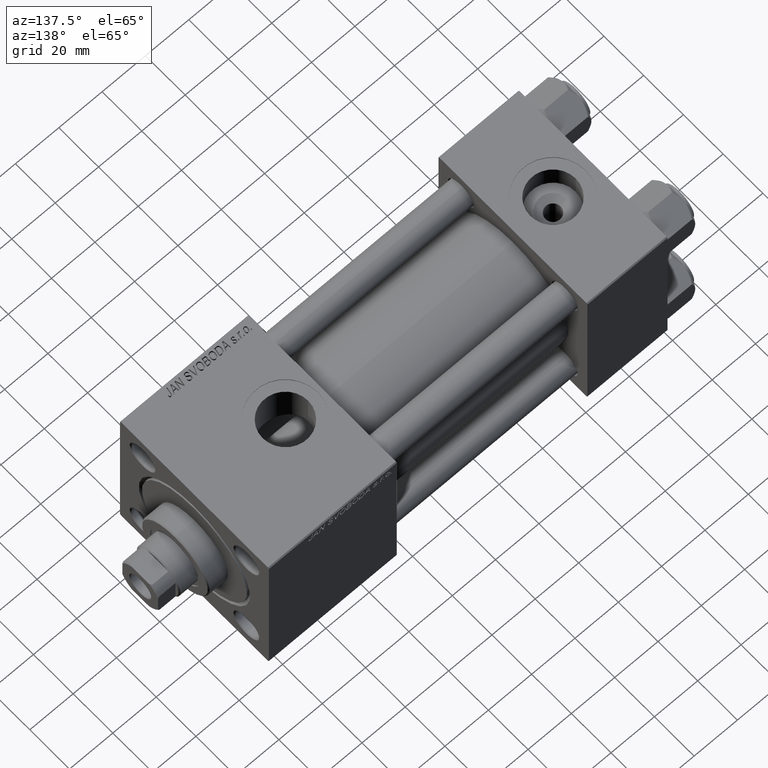
[diagram: clean part render]
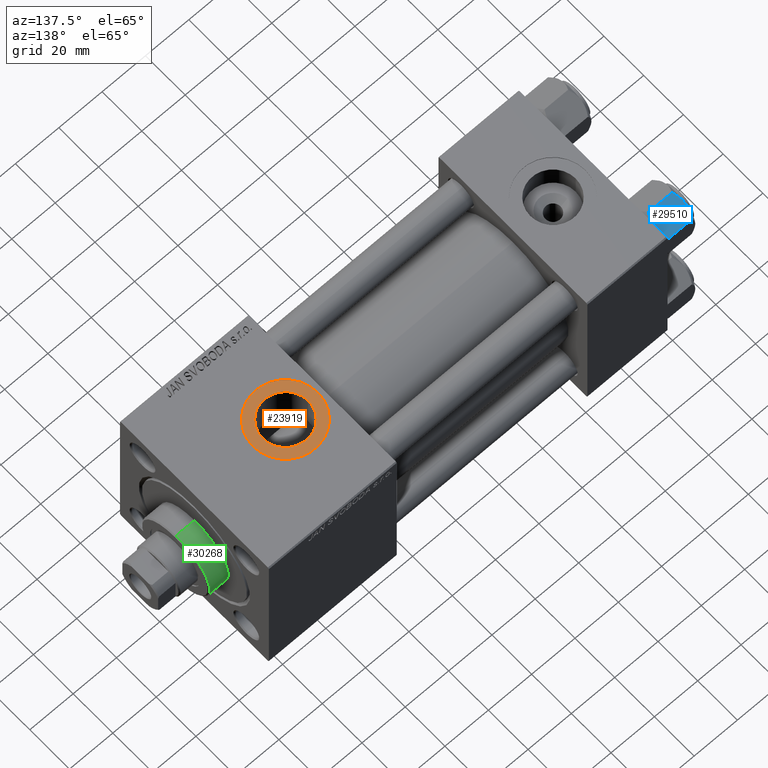
[diagram: same view with three faces highlighted in distinct colors, each labeled with its STEP entity id]
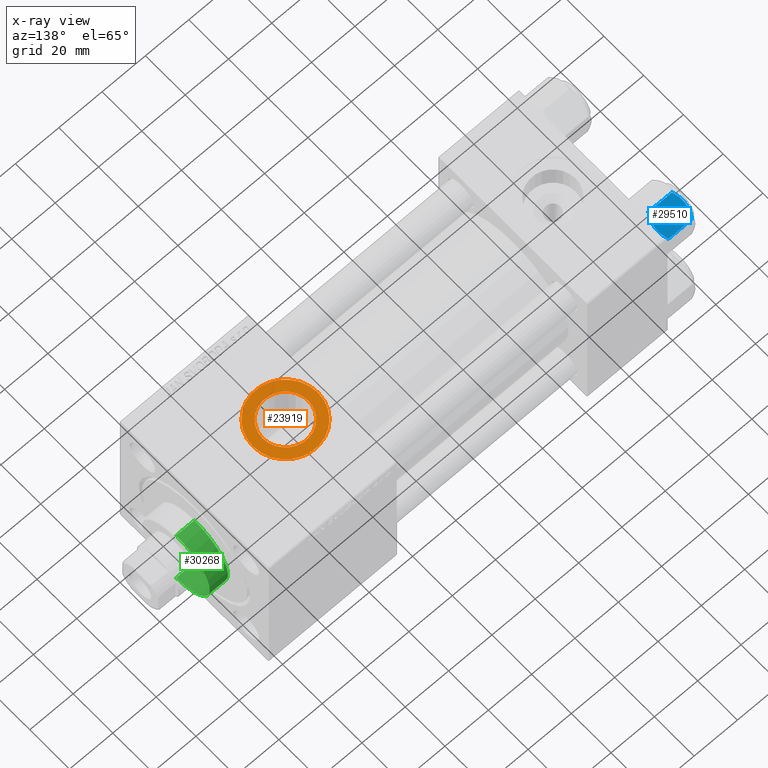
[diagram: x-ray of the same camera — body ghosted, the three highlighted faces saturated]
A machine part, auxiliary view with three faces highlighted in distinct colors.
The next image is the same camera in x-ray (body ghosted, the three faces saturated) — at least one of them is partly hidden behind the body in this view.
Their STEP definitions:

[orange] entity #23919 — the highlighted planar face has unit normal (0, 0, 1).
#1430 = CARTESIAN_POINT ( 'NONE',  ( 152.4800000000000182, -5.655464058400802100E-15, 37.29999999999998295 ) ) ;
#3270 = VERTEX_POINT ( 'NONE', #45122 ) ;
#5999 = CARTESIAN_POINT ( 'NONE',  ( 142.0000000000000284, -6.938893903907226011E-15, 37.29999999999998295 ) ) ;
#6926 = CARTESIAN_POINT ( 'NONE',  ( 142.0000000000000284, -6.938893903907226011E-15, 37.29999999999998295 ) ) ;
#7185 = DIRECTION ( 'NONE',  ( 0.000000000000000000, 0.000000000000000000, 1.000000000000000000 ) ) ;
#7533 = DIRECTION ( 'NONE',  ( -0.000000000000000000, -0.000000000000000000, -1.000000000000000000 ) ) ;
#8859 = EDGE_CURVE ( 'NONE', #26062, #43511, #43702, .T. ) ;
#9666 = AXIS2_PLACEMENT_3D ( 'NONE', #25043, #13604, #17517 ) ;
#11087 = CARTESIAN_POINT ( 'NONE',  ( 142.0000000000000284, -6.938893903907226011E-15, 37.29999999999998295 ) ) ;
#11682 = CARTESIAN_POINT ( 'NONE',  ( 142.0000000000000284, -6.938893903907226011E-15, 37.29999999999998295 ) ) ;
#12077 = EDGE_LOOP ( 'NONE', ( #21421, #30711 ) ) ;
#12200 = DIRECTION ( 'NONE',  ( 1.000000000000000000, 0.000000000000000000, 0.000000000000000000 ) ) ;
#13102 = VERTEX_POINT ( 'NONE', #1430 ) ;
#13604 = DIRECTION ( 'NONE',  ( 0.000000000000000000, 0.000000000000000000, 1.000000000000000000 ) ) ;
#15765 = ORIENTED_EDGE ( 'NONE', *, *, #48120, .T. ) ;
#16341 = CARTESIAN_POINT ( 'NONE',  ( 157.0000000000000284, -6.938893903907226011E-15, 37.29999999999998295 ) ) ;
#17517 = DIRECTION ( 'NONE',  ( 1.000000000000000000, 0.000000000000000000, 0.000000000000000000 ) ) ;
#18379 = DIRECTION ( 'NONE',  ( 1.000000000000000000, 0.000000000000000000, -0.000000000000000000 ) ) ;
#21257 = CIRCLE ( 'NONE', #50256, 10.47999999999998977 ) ;
#21421 = ORIENTED_EDGE ( 'NONE', *, *, #8859, .T. ) ;
#22280 = FACE_OUTER_BOUND ( 'NONE', #12077, .T. ) ;
#22793 = DIRECTION ( 'NONE',  ( 1.000000000000000000, 0.000000000000000000, 0.000000000000000000 ) ) ;
#23919 = ADVANCED_FACE ( 'NONE', ( #42521, #22280 ), #50043, .T. ) ;
#25043 = CARTESIAN_POINT ( 'NONE',  ( 142.0000000000000284, -6.938893903907226011E-15, 37.29999999999998295 ) ) ;
#25630 = CIRCLE ( 'NONE', #43880, 10.47999999999998977 ) ;
#26062 = VERTEX_POINT ( 'NONE', #16341 ) ;
#26744 = DIRECTION ( 'NONE',  ( 1.000000000000000000, 0.000000000000000000, 0.000000000000000000 ) ) ;
#30711 = ORIENTED_EDGE ( 'NONE', *, *, #32749, .T. ) ;
#32749 = EDGE_CURVE ( 'NONE', #43511, #26062, #50156, .T. ) ;
#35967 = EDGE_CURVE ( 'NONE', #13102, #3270, #21257, .T. ) ;
#37007 = ORIENTED_EDGE ( 'NONE', *, *, #35967, .T. ) ;
#37571 = AXIS2_PLACEMENT_3D ( 'NONE', #6926, #7185, #18379 ) ;
#37686 = DIRECTION ( 'NONE',  ( -0.000000000000000000, -0.000000000000000000, -1.000000000000000000 ) ) ;
#40299 = EDGE_LOOP ( 'NONE', ( #15765, #37007 ) ) ;
#42521 = FACE_BOUND ( 'NONE', #40299, .T. ) ;
#43511 = VERTEX_POINT ( 'NONE', #50859 ) ;
#43702 = CIRCLE ( 'NONE', #9666, 15.00000000000001421 ) ;
#43880 = AXIS2_PLACEMENT_3D ( 'NONE', #11682, #7533, #12200 ) ;
#45122 = CARTESIAN_POINT ( 'NONE',  ( 131.5200000000000387, -6.938893903907226011E-15, 37.29999999999998295 ) ) ;
#46854 = AXIS2_PLACEMENT_3D ( 'NONE', #11087, #47192, #22793 ) ;
#47192 = DIRECTION ( 'NONE',  ( 0.000000000000000000, 0.000000000000000000, 1.000000000000000000 ) ) ;
#48120 = EDGE_CURVE ( 'NONE', #3270, #13102, #25630, .T. ) ;
#50043 = PLANE ( 'NONE',  #37571 ) ;
#50156 = CIRCLE ( 'NONE', #46854, 15.00000000000001421 ) ;
#50256 = AXIS2_PLACEMENT_3D ( 'NONE', #5999, #37686, #26744 ) ;
#50859 = CARTESIAN_POINT ( 'NONE',  ( 127.0000000000000000, -5.101923705186191689E-15, 37.29999999999998295 ) ) ;

[blue] entity #29510 — the highlighted planar face has unit normal (0, -0.5, -0.866).
#1843 = CARTESIAN_POINT ( 'NONE',  ( 11.62000000000000099, -1.924525737834042474E-15, -1.556784808024813893 ) ) ;
#2121 = CARTESIAN_POINT ( 'NONE',  ( 8.460569896449619876, 5.472293462311864864, -14.00000000000000355 ) ) ;
#3059 = EDGE_CURVE ( 'NONE', #9451, #17231, #37602, .T. ) ;
#3958 = CARTESIAN_POINT ( 'NONE',  ( 11.62000000000000099, -1.795242522838921761E-15, -12.44321519197518455 ) ) ;
#4505 = CARTESIAN_POINT ( 'NONE',  ( 7.713000053756307928, 6.767122412062951398, -0.1545239700039825748 ) ) ;
#4762 = CARTESIAN_POINT ( 'NONE',  ( 8.209704053696576409, 5.906805847843727086, 3.430483436379916373E-15 ) ) ;
#4848 = CARTESIAN_POINT ( 'NONE',  ( 9.974696630283190757, 2.849749030213792000, -0.3002673809867367205 ) ) ;
#5386 = AXIS2_PLACEMENT_3D ( 'NONE', #34758, #15521, #47207 ) ;
#5764 = CARTESIAN_POINT ( 'NONE',  ( 8.202333004087902779, 5.919572880271052995, -13.96005881939309212 ) ) ;
#6843 = CARTESIAN_POINT ( 'NONE',  ( 11.62000000000000099, -1.813166800014576593E-15, -14.00000000000000000 ) ) ;
#8484 = CARTESIAN_POINT ( 'NONE',  ( 11.16445427487472131, 0.7890283410877956261, -1.101239082899531985 ) ) ;
#9070 = CARTESIAN_POINT ( 'NONE',  ( 5.810000000000000497, 10.06321519197518022, -14.00000000000000000 ) ) ;
#9336 = CARTESIAN_POINT ( 'NONE',  ( 5.810000000000000497, 10.06321519197518022, -12.44321519197518278 ) ) ;
#9451 = VERTEX_POINT ( 'NONE', #9336 ) ;
#10540 = CARTESIAN_POINT ( 'NONE',  ( 11.62000000000000099, -1.795242522838921761E-15, -12.44321519197518455 ) ) ;
#12219 = VECTOR ( 'NONE', #24918, 1000.000000000000000 ) ;
#12377 = CARTESIAN_POINT ( 'NONE',  ( 11.62000000000000099, -1.924525737834042474E-15, -1.556784808024813893 ) ) ;
#13816 = CARTESIAN_POINT ( 'NONE',  ( 6.731401448974989599, 8.467301068182914392, -13.28585617404753272 ) ) ;
#13821 = ORIENTED_EDGE ( 'NONE', *, *, #3059, .F. ) ;
#14434 = CARTESIAN_POINT ( 'NONE',  ( 11.16498164529022574, 0.7881149087337280257, -12.89823354668504862 ) ) ;
#15148 = CARTESIAN_POINT ( 'NONE',  ( 8.715000000000003411, 5.031607595987588333, -14.00000000000000000 ) ) ;
#15521 = DIRECTION ( 'NONE',  ( -0.8660254037844387076, -0.4999999999999998335, 0.000000000000000000 ) ) ;
#16453 = CARTESIAN_POINT ( 'NONE',  ( 5.810000000000000497, 10.06321519197518022, -1.556784808024815892 ) ) ;
#17231 = VERTEX_POINT ( 'NONE', #15148 ) ;
#18345 = CARTESIAN_POINT ( 'NONE',  ( 9.220295946303432189, 4.156409344131451356, -14.00000000000000178 ) ) ;
#18797 = DIRECTION ( 'NONE',  ( -0.000000000000000000, -0.000000000000000000, 1.000000000000000000 ) ) ;
#19497 = VERTEX_POINT ( 'NONE', #30197 ) ;
#20440 = CARTESIAN_POINT ( 'NONE',  ( 8.969430103550381617, 4.590921729663312689, 3.523657060577888622E-15 ) ) ;
#21123 = CARTESIAN_POINT ( 'NONE',  ( 8.715000000000005187, 5.031607595987590109, 0.000000000000000000 ) ) ;
#21367 = CARTESIAN_POINT ( 'NONE',  ( 7.700834831386346835, 6.788193195293095172, -13.80960203119265728 ) ) ;
#23823 = CARTESIAN_POINT ( 'NONE',  ( 9.227666995912102266, 4.143642311704121894, -0.03994118060690670519 ) ) ;
#24512 = CARTESIAN_POINT ( 'NONE',  ( 6.265018354709773973, 9.275100283241448196, -1.101766453314953154 ) ) ;
#24848 = CARTESIAN_POINT ( 'NONE',  ( 9.729165168613654657, 3.275021996682081493, -0.1903979688073405840 ) ) ;
#24918 = DIRECTION ( 'NONE',  ( -0.000000000000000000, -0.000000000000000000, 1.000000000000000000 ) ) ;
#27243 = B_SPLINE_CURVE_WITH_KNOTS ( 'NONE', 3,
 ( #21123, #4762, #4505, #44245, #24512, #16453 ),
 .UNSPECIFIED., .F., .F.,
 ( 4, 2, 4 ),
 ( 0.006022845781655588107, 0.009013049135303636758, 0.01200325248895168367 ),
 .UNSPECIFIED. ) ;
#27711 = CARTESIAN_POINT ( 'NONE',  ( 10.69859855102501278, 1.595914123792262718, -0.7141438259524649501 ) ) ;
#28044 = LINE ( 'NONE', #9070, #12219 ) ;
#29510 = ADVANCED_FACE ( 'NONE', ( #51088 ), #47472, .F. ) ;
#29780 = CARTESIAN_POINT ( 'NONE',  ( 8.715000000000003411, 5.031607595987588333, -14.00000000000000000 ) ) ;
#30197 = CARTESIAN_POINT ( 'NONE',  ( 8.715000000000005187, 5.031607595987590109, 0.000000000000000000 ) ) ;
#31787 = EDGE_CURVE ( 'NONE', #48972, #19497, #34830, .T. ) ;
#32784 = ORIENTED_EDGE ( 'NONE', *, *, #31787, .F. ) ;
#32985 = ORIENTED_EDGE ( 'NONE', *, *, #41641, .F. ) ;
#33566 = CARTESIAN_POINT ( 'NONE',  ( 8.715000000000003411, 5.031607595987588333, -14.00000000000000000 ) ) ;
#34185 = CARTESIAN_POINT ( 'NONE',  ( 9.716999946243698005, 3.296092779912227044, -13.84547602999601779 ) ) ;
#34758 = CARTESIAN_POINT ( 'NONE',  ( 5.810000000000000497, 10.06321519197518022, -14.00000000000000000 ) ) ;
#34830 = B_SPLINE_CURVE_WITH_KNOTS ( 'NONE', 3,
 ( #12377, #8484, #27711, #4848, #24848, #23823, #20440, #36536 ),
 .UNSPECIFIED., .F., .F.,
 ( 4, 2, 2, 4 ),
 ( 2.544312114903581015E-07, 0.003011550106433540791, 0.004517197944044564449, 0.006022845781655588107 ),
 .UNSPECIFIED. ) ;
#36536 = CARTESIAN_POINT ( 'NONE',  ( 8.715000000000005187, 5.031607595987590109, 0.000000000000000000 ) ) ;
#37602 = B_SPLINE_CURVE_WITH_KNOTS ( 'NONE', 3,
 ( #37707, #45762, #13816, #50142, #21367, #5764, #2121, #33566 ),
 .UNSPECIFIED., .F., .F.,
 ( 4, 2, 2, 4 ),
 ( 2.544312114902182352E-07, 0.003011550106433540791, 0.004517197944044566184, 0.006022845781655591577 ),
 .UNSPECIFIED. ) ;
#37647 = ORIENTED_EDGE ( 'NONE', *, *, #45524, .T. ) ;
#37707 = CARTESIAN_POINT ( 'NONE',  ( 5.810000000000000497, 10.06321519197518022, -12.44321519197518278 ) ) ;
#38706 = EDGE_CURVE ( 'NONE', #50126, #48972, #42443, .T. ) ;
#41336 = VERTEX_POINT ( 'NONE', #45941 ) ;
#41641 = EDGE_CURVE ( 'NONE', #17231, #50126, #44046, .T. ) ;
#42443 = LINE ( 'NONE', #6843, #46240 ) ;
#42894 = EDGE_CURVE ( 'NONE', #19497, #41336, #27243, .T. ) ;
#44046 = B_SPLINE_CURVE_WITH_KNOTS ( 'NONE', 3,
 ( #29780, #18345, #34185, #50005, #14434, #10540 ),
 .UNSPECIFIED., .F., .F.,
 ( 4, 2, 4 ),
 ( 0.006022845781655591577, 0.009013049135303638493, 0.01200325248895168714 ),
 .UNSPECIFIED. ) ;
#44165 = EDGE_LOOP ( 'NONE', ( #13821, #37647, #46735, #32784, #49193, #32985 ) ) ;
#44245 = CARTESIAN_POINT ( 'NONE',  ( 6.733375043383499126, 8.463882702393844326, -0.7114554706434494946 ) ) ;
#45524 = EDGE_CURVE ( 'NONE', #9451, #41336, #28044, .T. ) ;
#45762 = CARTESIAN_POINT ( 'NONE',  ( 6.265545725125283738, 9.274186850887380373, -12.89876091710046602 ) ) ;
#45941 = CARTESIAN_POINT ( 'NONE',  ( 5.810000000000000497, 10.06321519197518022, -1.556784808024815892 ) ) ;
#46240 = VECTOR ( 'NONE', #18797, 1000.000000000000000 ) ;
#46735 = ORIENTED_EDGE ( 'NONE', *, *, #42894, .F. ) ;
#47207 = DIRECTION ( 'NONE',  ( 0.4999999999999998335, -0.8660254037844387076, 0.000000000000000000 ) ) ;
#47472 = PLANE ( 'NONE',  #5386 ) ;
#48972 = VERTEX_POINT ( 'NONE', #1843 ) ;
#49193 = ORIENTED_EDGE ( 'NONE', *, *, #38706, .F. ) ;
#50005 = CARTESIAN_POINT ( 'NONE',  ( 10.69662495661650503, 1.599332489581332339, -13.28854452935654962 ) ) ;
#50126 = VERTEX_POINT ( 'NONE', #3958 ) ;
#50142 = CARTESIAN_POINT ( 'NONE',  ( 7.455303369716809847, 7.213466161761385997, -13.69973261901326289 ) ) ;
#51088 = FACE_OUTER_BOUND ( 'NONE', #44165, .T. ) ;

[green] entity #30268 — the highlighted cylindrical surface (partial cylindrical patch) has radius 17 mm, axis along (-1, -0, -0).
#324 = LINE ( 'NONE', #35910, #3858 ) ;
#1936 = EDGE_CURVE ( 'NONE', #24775, #6202, #29808, .T. ) ;
#2008 = AXIS2_PLACEMENT_3D ( 'NONE', #9119, #4964, #32759 ) ;
#2383 = CIRCLE ( 'NONE', #37247, 17.00000000000000000 ) ;
#3858 = VECTOR ( 'NONE', #31231, 1000.000000000000000 ) ;
#4964 = DIRECTION ( 'NONE',  ( -0.000000000000000000, -0.000000000000000000, -1.000000000000000000 ) ) ;
#5252 = VECTOR ( 'NONE', #10811, 1000.000000000000000 ) ;
#6202 = VERTEX_POINT ( 'NONE', #31192 ) ;
#6253 = CARTESIAN_POINT ( 'NONE',  ( -17.00000000000000000, 0.000000000000000000, 28.69999999999999929 ) ) ;
#8856 = FACE_OUTER_BOUND ( 'NONE', #36830, .T. ) ;
#8983 = EDGE_CURVE ( 'NONE', #32515, #26933, #324, .T. ) ;
#9119 = CARTESIAN_POINT ( 'NONE',  ( 0.000000000000000000, 0.000000000000000000, 37.69999999999999574 ) ) ;
#10575 = CARTESIAN_POINT ( 'NONE',  ( 0.000000000000000000, 0.000000000000000000, 28.69999999999999929 ) ) ;
#10811 = DIRECTION ( 'NONE',  ( -0.000000000000000000, -0.000000000000000000, -1.000000000000000000 ) ) ;
#10826 = DIRECTION ( 'NONE',  ( 1.000000000000000000, 0.000000000000000000, 0.000000000000000000 ) ) ;
#15762 = ORIENTED_EDGE ( 'NONE', *, *, #48266, .T. ) ;
#15834 = CARTESIAN_POINT ( 'NONE',  ( -17.00000000000000000, 0.000000000000000000, 37.19999999999999574 ) ) ;
#16851 = CIRCLE ( 'NONE', #23479, 17.00000000000000000 ) ;
#23479 = AXIS2_PLACEMENT_3D ( 'NONE', #10575, #26167, #10826 ) ;
#23883 = EDGE_CURVE ( 'NONE', #6202, #26933, #16851, .T. ) ;
#24107 = ORIENTED_EDGE ( 'NONE', *, *, #8983, .F. ) ;
#24707 = CYLINDRICAL_SURFACE ( 'NONE', #2008, 17.00000000000000000 ) ;
#24775 = VERTEX_POINT ( 'NONE', #46535 ) ;
#26167 = DIRECTION ( 'NONE',  ( 0.000000000000000000, 0.000000000000000000, 1.000000000000000000 ) ) ;
#26933 = VERTEX_POINT ( 'NONE', #6253 ) ;
#29808 = LINE ( 'NONE', #45397, #5252 ) ;
#29951 = ORIENTED_EDGE ( 'NONE', *, *, #1936, .T. ) ;
#30268 = ADVANCED_FACE ( 'NONE', ( #8856 ), #24707, .T. ) ;
#31192 = CARTESIAN_POINT ( 'NONE',  ( 17.00000000000000000, 2.081899558550500280E-15, 28.69999999999999929 ) ) ;
#31231 = DIRECTION ( 'NONE',  ( -0.000000000000000000, -0.000000000000000000, -1.000000000000000000 ) ) ;
#32515 = VERTEX_POINT ( 'NONE', #15834 ) ;
#32759 = DIRECTION ( 'NONE',  ( -1.000000000000000000, 0.000000000000000000, 0.000000000000000000 ) ) ;
#33490 = DIRECTION ( 'NONE',  ( 0.000000000000000000, 0.000000000000000000, -1.000000000000000000 ) ) ;
#35910 = CARTESIAN_POINT ( 'NONE',  ( -17.00000000000000000, 0.000000000000000000, 37.69999999999999574 ) ) ;
#36830 = EDGE_LOOP ( 'NONE', ( #15762, #29951, #45609, #24107 ) ) ;
#37247 = AXIS2_PLACEMENT_3D ( 'NONE', #37381, #33490, #49318 ) ;
#37381 = CARTESIAN_POINT ( 'NONE',  ( 0.000000000000000000, 0.000000000000000000, 37.19999999999999574 ) ) ;
#45397 = CARTESIAN_POINT ( 'NONE',  ( 17.00000000000000000, 2.081899558550500280E-15, 37.69999999999999574 ) ) ;
#45609 = ORIENTED_EDGE ( 'NONE', *, *, #23883, .T. ) ;
#46535 = CARTESIAN_POINT ( 'NONE',  ( 17.00000000000000000, 2.081899558550500280E-15, 37.19999999999999574 ) ) ;
#48266 = EDGE_CURVE ( 'NONE', #32515, #24775, #2383, .T. ) ;
#49318 = DIRECTION ( 'NONE',  ( 1.000000000000000000, 0.000000000000000000, 0.000000000000000000 ) ) ;